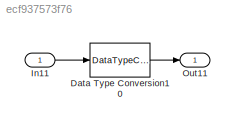
MODEL slx_ecf937573f76
KIND model
CONFIG AbsTol = auto
CONFIG EnableMultiTasking = on
CONFIG FixedStep = 0.1
CONFIG MaxStep = auto
CONFIG MinStep = auto
CONFIG RelTol = 1e-3
CONFIG SampleTimeConstraint = Unconstrained
CONFIG Solver = FixedStepAuto
CONFIG SolverName = FixedStepAuto
CONFIG StartTime = 0.0
CONFIG StopTime = 10.0
BLOCK [DataTypeConversion] Data Type Conversion10
  OutDataTypeStr = fixdt(1,16,0)
  RndMeth = Round
  SaturateOnIntegerOverflow = off
BLOCK [Inport] In11
  IconDisplay = Port number
  OutDataTypeStr = double
  PortDimensions = 1
BLOCK [Outport] Out11
  IconDisplay = Port number
LINE Data Type Conversion10:1 -> Out11:1
LINE In11:1 -> Data Type Conversion10:1
